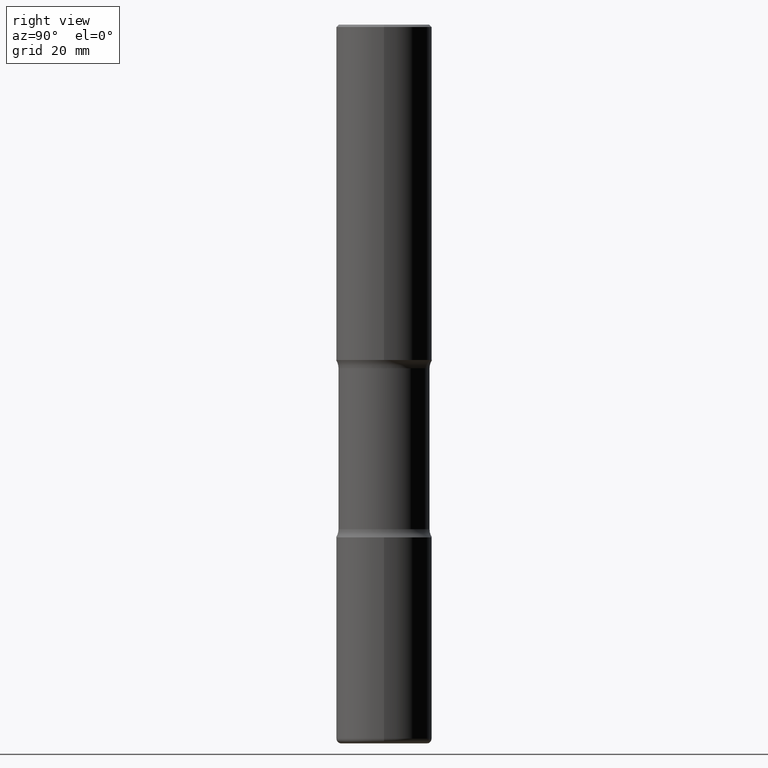
[diagram: clean part render]
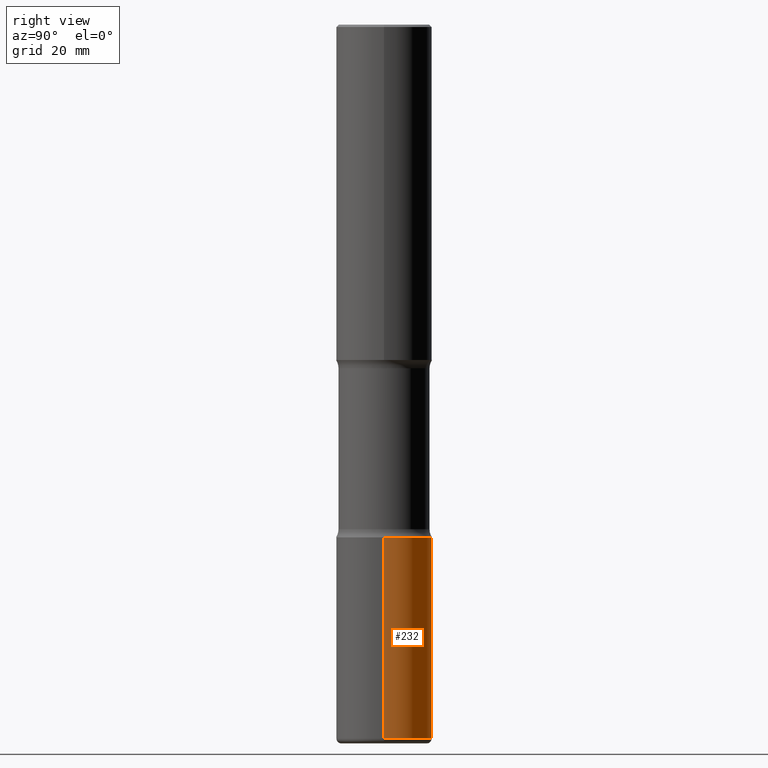
[diagram: same view with one face highlighted and labeled with its STEP entity id]
A machine part, right view. The second image highlights one B-rep face of the part: STEP entity #232.
In plain terms, the highlighted cylindrical surface (partial cylindrical patch) has radius 10 mm, axis along (-0, 0, 1).
Its self-contained STEP definition (entity closure, byte-faithful):
#8 = DIRECTION ( 'NONE',  ( -2.445468806185136877E-29, 3.491481338843145188E-15, 1.000000000000000000 ) ) ;
#25 = ORIENTED_EDGE ( 'NONE', *, *, #97, .T. ) ;
#44 = CARTESIAN_POINT ( 'NONE',  ( 1.434536456396262699E-28, -2.048137868178777275E-14, -5.866099999999998538 ) ) ;
#45 = VECTOR ( 'NONE', #184, 39.37007874015748143 ) ;
#71 = ORIENTED_EDGE ( 'NONE', *, *, #128, .F. ) ;
#78 = ORIENTED_EDGE ( 'NONE', *, *, #189, .F. ) ;
#79 = DIRECTION ( 'NONE',  ( -2.445468806185136597E-29, 3.491481338843145583E-15, 1.000000000000000000 ) ) ;
#96 = LINE ( 'NONE', #520, #251 ) ;
#97 = EDGE_CURVE ( 'NONE', #360, #122, #96, .T. ) ;
#104 = LINE ( 'NONE', #150, #45 ) ;
#122 = VERTEX_POINT ( 'NONE', #494 ) ;
#128 = EDGE_CURVE ( 'NONE', #156, #122, #546, .T. ) ;
#150 = CARTESIAN_POINT ( 'NONE',  ( 0.3937000000000002164, -2.749192406205084794E-15, 1.919750796630861012E-29 ) ) ;
#156 = VERTEX_POINT ( 'NONE', #542 ) ;
#166 = AXIS2_PLACEMENT_3D ( 'NONE', #191, #378, #288 ) ;
#184 = DIRECTION ( 'NONE',  ( -2.445468806185136877E-29, 3.491481338843145188E-15, 1.000000000000000000 ) ) ;
#189 = EDGE_CURVE ( 'NONE', #243, #156, #104, .T. ) ;
#191 = CARTESIAN_POINT ( 'NONE',  ( 1.030178189293550378E-28, -1.470821428801063089E-14, -4.212599999999998346 ) ) ;
#206 = EDGE_LOOP ( 'NONE', ( #330, #25, #71, #78 ) ) ;
#232 = ADVANCED_FACE ( 'NONE', ( #365 ), #337, .T. ) ;
#243 = VERTEX_POINT ( 'NONE', #463 ) ;
#251 = VECTOR ( 'NONE', #8, 39.37007874015748143 ) ;
#283 = CARTESIAN_POINT ( 'NONE',  ( 0.000000000000000000, 0.000000000000000000, 0.000000000000000000 ) ) ;
#288 = DIRECTION ( 'NONE',  ( 1.000000000000000000, -6.982962677686269077E-15, 0.000000000000000000 ) ) ;
#293 = DIRECTION ( 'NONE',  ( 1.000000000000000000, -6.982962677686266711E-15, 4.876176775795935793E-29 ) ) ;
#298 = DIRECTION ( 'NONE',  ( 1.000000000000000000, -6.982962677686265133E-15, 0.000000000000000000 ) ) ;
#307 = CARTESIAN_POINT ( 'NONE',  ( -0.3937000000000004385, -1.768397193110025560E-14, -5.866099999999998538 ) ) ;
#330 = ORIENTED_EDGE ( 'NONE', *, *, #507, .T. ) ;
#337 = CYLINDRICAL_SURFACE ( 'NONE', #361, 0.3937000000000002164 ) ;
#360 = VERTEX_POINT ( 'NONE', #307 ) ;
#361 = AXIS2_PLACEMENT_3D ( 'NONE', #283, #504, #293 ) ;
#365 = FACE_OUTER_BOUND ( 'NONE', #206, .T. ) ;
#378 = DIRECTION ( 'NONE',  ( -2.445468806185136597E-29, 3.491481338843145583E-15, 1.000000000000000000 ) ) ;
#388 = CIRCLE ( 'NONE', #539, 0.3937000000000002164 ) ;
#463 = CARTESIAN_POINT ( 'NONE',  ( 0.3937000000000004385, -2.323057108799285912E-14, -5.866099999999998538 ) ) ;
#494 = CARTESIAN_POINT ( 'NONE',  ( -0.3937000000000002720, -1.479738973421168625E-14, -4.212599999999998346 ) ) ;
#504 = DIRECTION ( 'NONE',  ( -2.445468806185136597E-29, 3.491481338843145583E-15, 1.000000000000000000 ) ) ;
#507 = EDGE_CURVE ( 'NONE', #243, #360, #388, .T. ) ;
#520 = CARTESIAN_POINT ( 'NONE',  ( -0.3937000000000002164, 2.797406750687515970E-15, -1.936584745033357576E-29 ) ) ;
#539 = AXIS2_PLACEMENT_3D ( 'NONE', #44, #79, #298 ) ;
#542 = CARTESIAN_POINT ( 'NONE',  ( 0.3937000000000002720, -1.745740669421571411E-14, -4.212599999999998346 ) ) ;
#546 = CIRCLE ( 'NONE', #166, 0.3937000000000002720 ) ;